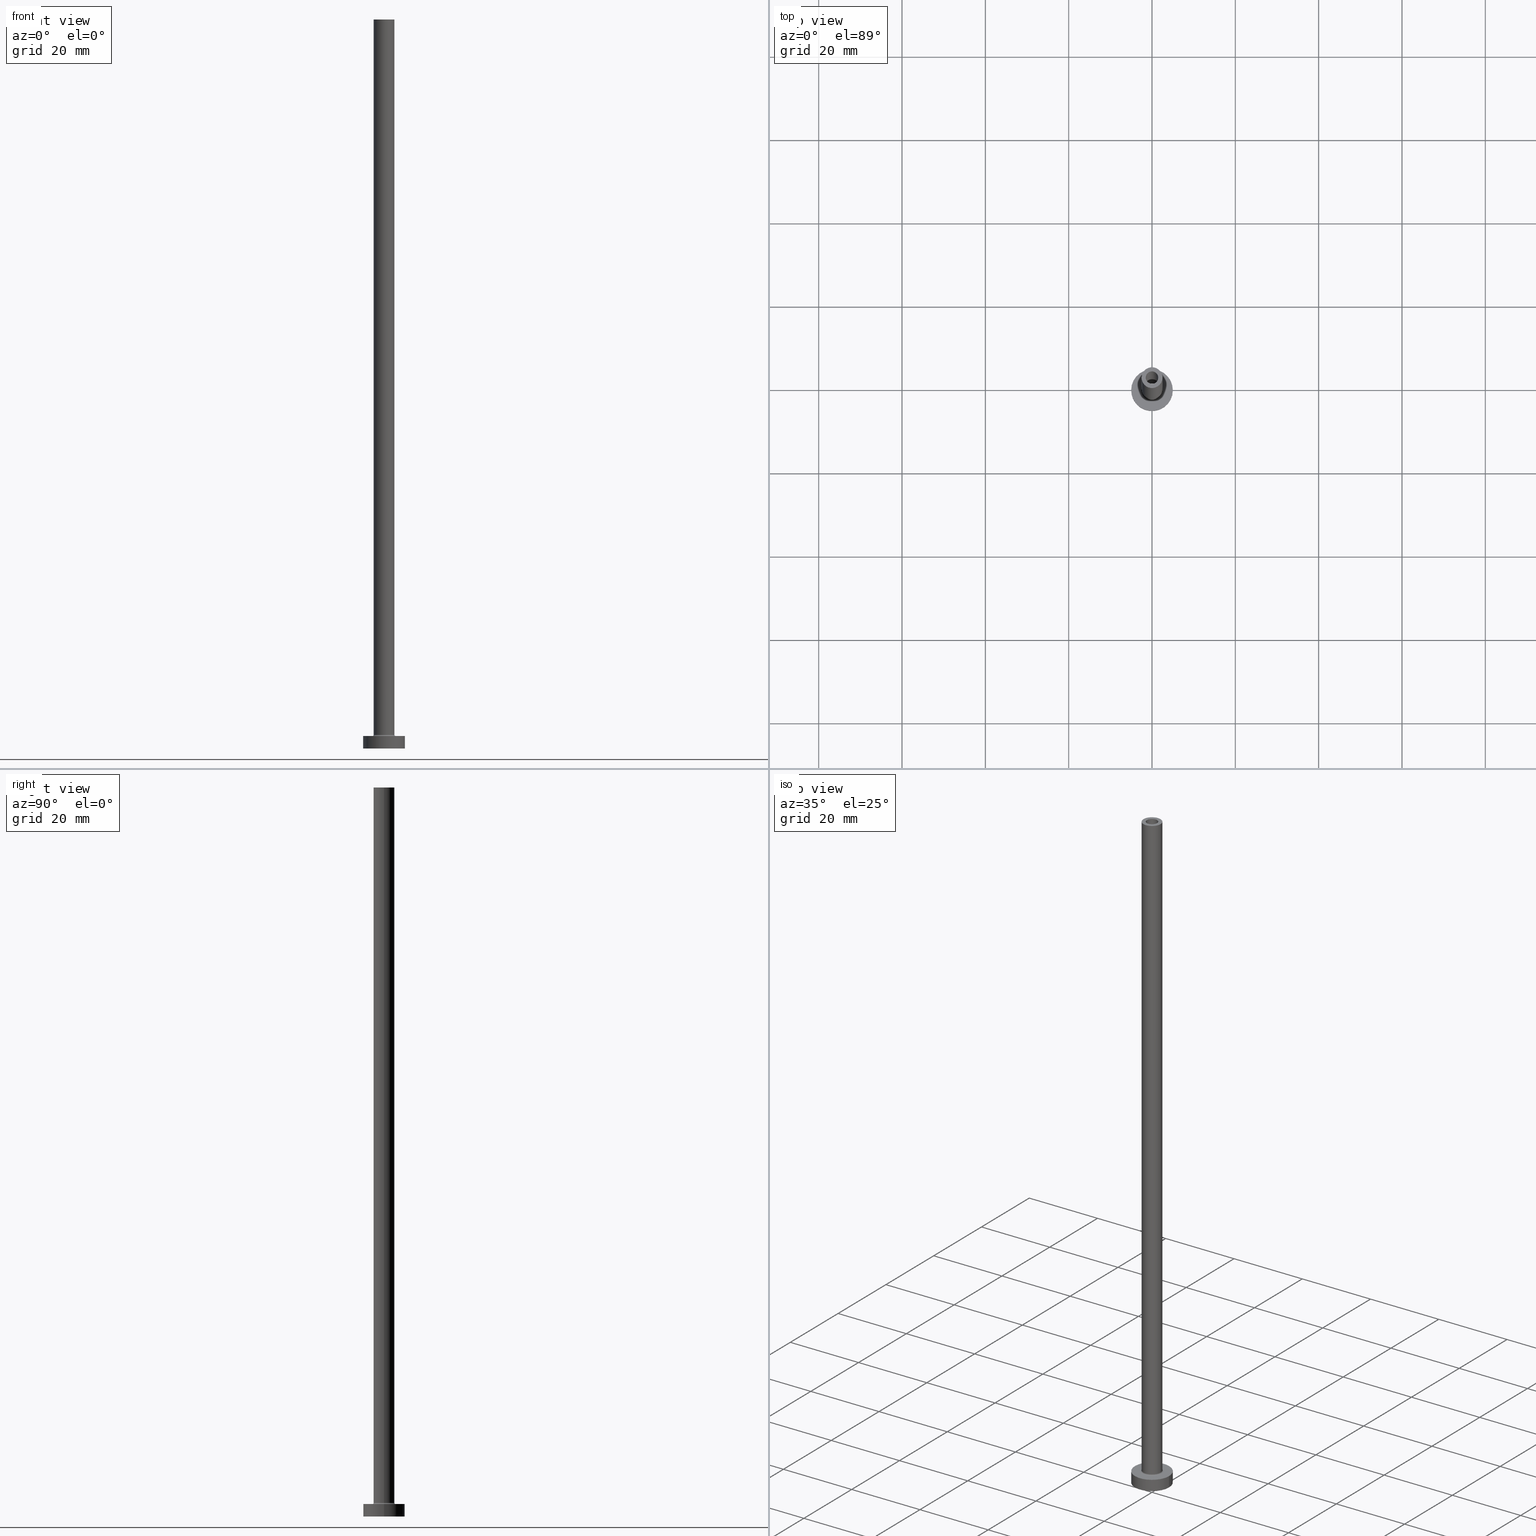
[diagram: canonical four-view strip — front | top / right | iso, engineering-drawing reading convention]
A machine part, canonical four-view strip (front | top / right | iso — engineering-drawing reading convention). The complete STEP part file that produces these views, byte-faithful:
ISO-10303-21;
HEADER;
FILE_DESCRIPTION (( 'STEP AP203' ),
    '1' );
FILE_NAME ('c6d4.STEP',
    '2023-02-13T12:04:06',
    ( '' ),
    ( '' ),
    'SwSTEP 2.0',
    'SolidWorks 2019',
    '' );
FILE_SCHEMA (( 'CONFIG_CONTROL_DESIGN' ));
ENDSEC;

DATA;
#1 = CALENDAR_DATE ( 2023, 13, 2 ) ;
#2 = AXIS2_PLACEMENT_3D ( 'NONE', #86, #3, #324 ) ;
#3 = DIRECTION ( 'NONE',  ( 0.000000000000000000, 0.000000000000000000, 1.000000000000000000 ) ) ;
#4 = ORIENTED_EDGE ( 'NONE', *, *, #7, .T. ) ;
#5 = CARTESIAN_POINT ( 'NONE',  ( 0.000000000000000000, 0.000000000000000000, 134.6669047558312116 ) ) ;
#6 = DATE_TIME_ROLE ( 'classification_date' ) ;
#7 = EDGE_CURVE ( 'NONE', #239, #161, #316, .T. ) ;
#8 = PERSON_AND_ORGANIZATION ( #430, #176 ) ;
#9 = VERTEX_POINT ( 'NONE', #281 ) ;
#10 = DIRECTION ( 'NONE',  ( -0.000000000000000000, -0.000000000000000000, -1.000000000000000000 ) ) ;
#11 = CARTESIAN_POINT ( 'NONE',  ( 0.000000000000000000, 0.000000000000000000, 0.000000000000000000 ) ) ;
#12 = ORIENTED_EDGE ( 'NONE', *, *, #159, .T. ) ;
#13 = CARTESIAN_POINT ( 'NONE',  ( 0.000000000000000000, 0.000000000000000000, 134.6669047558312116 ) ) ;
#14 = PRODUCT_DEFINITION_FORMATION_WITH_SPECIFIED_SOURCE ( 'LIBOVOLN�', '', #262, .NOT_KNOWN. ) ;
#15 = ORIENTED_EDGE ( 'NONE', *, *, #403, .T. ) ;
#16 = CARTESIAN_POINT ( 'NONE',  ( 0.000000000000000000, 0.000000000000000000, 3.000000000000000000 ) ) ;
#17 = DIRECTION ( 'NONE',  ( 1.000000000000000000, 0.000000000000000000, 0.000000000000000000 ) ) ;
#18 = EDGE_LOOP ( 'NONE', ( #328, #198 ) ) ;
#19 = DIRECTION ( 'NONE',  ( -0.000000000000000000, -0.000000000000000000, -1.000000000000000000 ) ) ;
#20 = DIRECTION ( 'NONE',  ( -0.000000000000000000, -0.000000000000000000, -1.000000000000000000 ) ) ;
#21 = CARTESIAN_POINT ( 'NONE',  ( 0.000000000000000000, 0.000000000000000000, 175.0000000000000000 ) ) ;
#22 = EDGE_CURVE ( 'NONE', #103, #435, #319, .T. ) ;
#23 = ORIENTED_EDGE ( 'NONE', *, *, #376, .T. ) ;
#24 = DIRECTION ( 'NONE',  ( 0.000000000000000000, 0.000000000000000000, -1.000000000000000000 ) ) ;
#25 = LOCAL_TIME ( 13, 4, 6.000000000000000000, #115 ) ;
#26 = EDGE_CURVE ( 'NONE', #161, #9, #79, .T. ) ;
#27 = DIRECTION ( 'NONE',  ( 1.000000000000000000, 0.000000000000000000, -0.000000000000000000 ) ) ;
#28 = AXIS2_PLACEMENT_3D ( 'NONE', #16, #51, #171 ) ;
#29 = LINE ( 'NONE', #146, #286 ) ;
#30 = EDGE_LOOP ( 'NONE', ( #422, #271, #234, #344 ) ) ;
#31 = CARTESIAN_POINT ( 'NONE',  ( -2.500000000000000000, 0.000000000000000000, 175.0000000000000000 ) ) ;
#32 = DIRECTION ( 'NONE',  ( 0.000000000000000000, 0.000000000000000000, 1.000000000000000000 ) ) ;
#33 = DIRECTION ( 'NONE',  ( 0.000000000000000000, 0.000000000000000000, 1.000000000000000000 ) ) ;
#34 = ORIENTED_EDGE ( 'NONE', *, *, #408, .T. ) ;
#35 = CARTESIAN_POINT ( 'NONE',  ( 0.000000000000000000, 0.000000000000000000, 130.0000000000000000 ) ) ;
#36 = ORIENTED_EDGE ( 'NONE', *, *, #294, .T. ) ;
#37 = APPROVAL_PERSON_ORGANIZATION ( #437, #261, #296 ) ;
#38 = APPLICATION_PROTOCOL_DEFINITION ( 'international standard', 'config_control_design', 1994, #212 ) ;
#39 = DIRECTION ( 'NONE',  ( 0.000000000000000000, 0.000000000000000000, 1.000000000000000000 ) ) ;
#40 = PERSON_AND_ORGANIZATION_ROLE ( 'classification_officer' ) ;
#41 = ORIENTED_EDGE ( 'NONE', *, *, #188, .T. ) ;
#42 = CARTESIAN_POINT ( 'NONE',  ( 0.000000000000000000, 0.000000000000000000, 0.000000000000000000 ) ) ;
#43 = CC_DESIGN_PERSON_AND_ORGANIZATION_ASSIGNMENT ( #362, #162, ( #262 ) ) ;
#44 = DIRECTION ( 'NONE',  ( 0.000000000000000000, 0.000000000000000000, 1.000000000000000000 ) ) ;
#45 = ORIENTED_EDGE ( 'NONE', *, *, #376, .F. ) ;
#46 = DATE_AND_TIME ( #1, #25 ) ;
#47 = CARTESIAN_POINT ( 'NONE',  ( 0.000000000000000000, 0.000000000000000000, 175.0000000000000000 ) ) ;
#48 = CIRCLE ( 'NONE', #135, 2.500000000000000000 ) ;
#49 = EDGE_LOOP ( 'NONE', ( #170, #12 ) ) ;
#50 = PERSON_AND_ORGANIZATION_ROLE ( 'creator' ) ;
#51 = DIRECTION ( 'NONE',  ( -0.000000000000000000, -0.000000000000000000, -1.000000000000000000 ) ) ;
#52 = PRODUCT_DEFINITION ( 'NEZN�M�', '', #14, #252 ) ;
#53 = ORIENTED_EDGE ( 'NONE', *, *, #311, .F. ) ;
#54 = CARTESIAN_POINT ( 'NONE',  ( 2.500000000000000000, 3.061616997868383141E-16, 175.0000000000000000 ) ) ;
#55 = CYLINDRICAL_SURFACE ( 'NONE', #201, 1.500000000000000222 ) ;
#56 = AXIS2_PLACEMENT_3D ( 'NONE', #5, #117, #370 ) ;
#57 = AXIS2_PLACEMENT_3D ( 'NONE', #444, #399, #206 ) ;
#58 = ORIENTED_EDGE ( 'NONE', *, *, #456, .F. ) ;
#59 = DIRECTION ( 'NONE',  ( 1.000000000000000000, 0.000000000000000000, 0.000000000000000000 ) ) ;
#60 = CIRCLE ( 'NONE', #224, 1.650000000000000133 ) ;
#61 = FACE_OUTER_BOUND ( 'NONE', #300, .T. ) ;
#62 = LOCAL_TIME ( 13, 4, 6.000000000000000000, #278 ) ;
#63 = CARTESIAN_POINT ( 'NONE',  ( 0.000000000000000000, 0.000000000000000000, 3.000000000000000000 ) ) ;
#64 = DIRECTION ( 'NONE',  ( 1.000000000000000000, 0.000000000000000000, 0.000000000000000000 ) ) ;
#65 = LOCAL_TIME ( 13, 4, 6.000000000000000000, #398 ) ;
#66 = EDGE_LOOP ( 'NONE', ( #312, #123 ) ) ;
#67 = VECTOR ( 'NONE', #155, 1000.000000000000000 ) ;
#68 = DIRECTION ( 'NONE',  ( 1.000000000000000000, 0.000000000000000000, 0.000000000000000000 ) ) ;
#69 = AXIS2_PLACEMENT_3D ( 'NONE', #175, #453, #138 ) ;
#70 = DIRECTION ( 'NONE',  ( 1.000000000000000000, 0.000000000000000000, 0.000000000000000000 ) ) ;
#71 = EDGE_CURVE ( 'NONE', #132, #336, #240, .T. ) ;
#72 = PERSON_AND_ORGANIZATION ( #430, #176 ) ;
#73 = FACE_OUTER_BOUND ( 'NONE', #245, .T. ) ;
#74 = AXIS2_PLACEMENT_3D ( 'NONE', #260, #297, #68 ) ;
#75 = ORIENTED_EDGE ( 'NONE', *, *, #395, .T. ) ;
#76 = CALENDAR_DATE ( 2023, 13, 2 ) ;
#77 = APPROVAL_DATE_TIME ( #302, #432 ) ;
#78 = CARTESIAN_POINT ( 'NONE',  ( -1.500000000000000222, 0.000000000000000000, 130.0000000000000000 ) ) ;
#79 = CIRCLE ( 'NONE', #69, 0.2999999999999999334 ) ;
#80 = EDGE_CURVE ( 'NONE', #103, #351, #60, .T. ) ;
#81 = FACE_OUTER_BOUND ( 'NONE', #49, .T. ) ;
#82 = ORIENTED_EDGE ( 'NONE', *, *, #182, .T. ) ;
#83 = AXIS2_PLACEMENT_3D ( 'NONE', #280, #407, #166 ) ;
#84 = FACE_OUTER_BOUND ( 'NONE', #448, .T. ) ;
#85 = DIRECTION ( 'NONE',  ( -1.000000000000000000, 1.224646799147353207E-16, 0.000000000000000000 ) ) ;
#86 = CARTESIAN_POINT ( 'NONE',  ( 0.000000000000000000, 0.000000000000000000, 3.000000000000000000 ) ) ;
#87 = VERTEX_POINT ( 'NONE', #105 ) ;
#88 = CALENDAR_DATE ( 2023, 13, 2 ) ;
#89 = DIRECTION ( 'NONE',  ( 0.000000000000000000, 0.000000000000000000, -1.000000000000000000 ) ) ;
#90 = ADVANCED_FACE ( 'NONE', ( #354, #187 ), #420, .F. ) ;
#91 = ORIENTED_EDGE ( 'NONE', *, *, #98, .T. ) ;
#92 = CARTESIAN_POINT ( 'NONE',  ( 0.000000000000000000, 0.000000000000000000, 175.0000000000000000 ) ) ;
#93 = CARTESIAN_POINT ( 'NONE',  ( -5.000000000000000000, 0.000000000000000000, 0.000000000000000000 ) ) ;
#94 = ORIENTED_EDGE ( 'NONE', *, *, #273, .F. ) ;
#95 = CARTESIAN_POINT ( 'NONE',  ( -2.799999999999999822, 3.429011037612588783E-16, 3.299999999999997158 ) ) ;
#96 = TOROIDAL_SURFACE ( 'NONE', #195, 2.799999999999999822, 0.2999999999999999889 ) ;
#97 = DIRECTION ( 'NONE',  ( -0.000000000000000000, -0.000000000000000000, -1.000000000000000000 ) ) ;
#98 = EDGE_CURVE ( 'NONE', #275, #378, #436, .T. ) ;
#99 = ADVANCED_BREP_SHAPE_REPRESENTATION ( 'c6d4', ( #181, #387 ), #118 ) ;
#100 = DIRECTION ( 'NONE',  ( 0.000000000000000000, 0.000000000000000000, -1.000000000000000000 ) ) ;
#101 = CARTESIAN_POINT ( 'NONE',  ( -5.000000000000000000, 0.000000000000000000, 3.000000000000000000 ) ) ;
#102 = ORIENTED_EDGE ( 'NONE', *, *, #26, .F. ) ;
#103 = VERTEX_POINT ( 'NONE', #235 ) ;
#104 = DIRECTION ( 'NONE',  ( 1.000000000000000000, 0.000000000000000000, -0.000000000000000000 ) ) ;
#105 = CARTESIAN_POINT ( 'NONE',  ( -2.500000000000000000, 0.000000000000000000, 175.0000000000000000 ) ) ;
#106 = DIRECTION ( 'NONE',  ( 0.000000000000000000, 0.000000000000000000, -1.000000000000000000 ) ) ;
#107 = ORIENTED_EDGE ( 'NONE', *, *, #456, .T. ) ;
#108 = DIRECTION ( 'NONE',  ( -1.000000000000000000, 0.000000000000000000, 0.000000000000000000 ) ) ;
#109 = AXIS2_PLACEMENT_3D ( 'NONE', #356, #421, #258 ) ;
#110 = ADVANCED_FACE ( 'NONE', ( #144 ), #96, .F. ) ;
#111 = DIRECTION ( 'NONE',  ( -0.000000000000000000, -0.000000000000000000, -1.000000000000000000 ) ) ;
#112 = TOROIDAL_SURFACE ( 'NONE', #375, 2.799999999999999822, 0.2999999999999999889 ) ;
#113 = DATE_AND_TIME ( #156, #426 ) ;
#114 = ORIENTED_EDGE ( 'NONE', *, *, #148, .T. ) ;
#115 = COORDINATED_UNIVERSAL_TIME_OFFSET ( 1, 0, .AHEAD. ) ;
#116 = ORIENTED_EDGE ( 'NONE', *, *, #254, .F. ) ;
#117 = DIRECTION ( 'NONE',  ( 0.000000000000000000, 0.000000000000000000, -1.000000000000000000 ) ) ;
#118 =( GEOMETRIC_REPRESENTATION_CONTEXT ( 3 ) GLOBAL_UNCERTAINTY_ASSIGNED_CONTEXT ( ( #414 ) ) GLOBAL_UNIT_ASSIGNED_CONTEXT ( ( #337, #459, #153 ) ) REPRESENTATION_CONTEXT ( 'NONE', 'WORKASPACE' ) );
#119 = APPROVAL_DATE_TIME ( #270, #261 ) ;
#120 = CYLINDRICAL_SURFACE ( 'NONE', #213, 5.000000000000000000 ) ;
#121 = FACE_BOUND ( 'NONE', #18, .T. ) ;
#122 = CIRCLE ( 'NONE', #359, 2.500000000000000000 ) ;
#123 = ORIENTED_EDGE ( 'NONE', *, *, #80, .F. ) ;
#124 = FACE_OUTER_BOUND ( 'NONE', #189, .T. ) ;
#125 = EDGE_LOOP ( 'NONE', ( #417, #404 ) ) ;
#126 = CYLINDRICAL_SURFACE ( 'NONE', #216, 1.650000000000000133 ) ;
#127 = AXIS2_PLACEMENT_3D ( 'NONE', #92, #379, #59 ) ;
#128 = VERTEX_POINT ( 'NONE', #78 ) ;
#129 = APPROVAL_ROLE ( '' ) ;
#130 = DIRECTION ( 'NONE',  ( 1.000000000000000000, 0.000000000000000000, 0.000000000000000000 ) ) ;
#131 = ADVANCED_FACE ( 'NONE', ( #124 ), #120, .T. ) ;
#132 = VERTEX_POINT ( 'NONE', #274 ) ;
#133 = DIRECTION ( 'NONE',  ( 1.000000000000000000, 0.000000000000000000, 0.000000000000000000 ) ) ;
#134 = CARTESIAN_POINT ( 'NONE',  ( 0.000000000000000000, 0.000000000000000000, 0.000000000000000000 ) ) ;
#135 = AXIS2_PLACEMENT_3D ( 'NONE', #390, #223, #364 ) ;
#136 = CIRCLE ( 'NONE', #74, 5.000000000000000000 ) ;
#137 = ADVANCED_FACE ( 'NONE', ( #303 ), #112, .F. ) ;
#138 = DIRECTION ( 'NONE',  ( 0.000000000000000000, 0.000000000000000000, -1.000000000000000000 ) ) ;
#139 = DIRECTION ( 'NONE',  ( 0.000000000000000000, 0.000000000000000000, 1.000000000000000000 ) ) ;
#140 = EDGE_LOOP ( 'NONE', ( #269, #4, #393, #45 ) ) ;
#141 = VECTOR ( 'NONE', #339, 1000.000000000000000 ) ;
#142 = CARTESIAN_POINT ( 'NONE',  ( 1.650000000000000133, 2.020667218593133001E-16, 0.000000000000000000 ) ) ;
#143 = EDGE_CURVE ( 'NONE', #378, #275, #293, .T. ) ;
#144 = FACE_OUTER_BOUND ( 'NONE', #222, .T. ) ;
#145 = DIRECTION ( 'NONE',  ( 1.000000000000000000, 0.000000000000000000, 0.000000000000000000 ) ) ;
#146 = CARTESIAN_POINT ( 'NONE',  ( 1.500000000000000222, 1.836970198721029934E-16, 175.0000000000000000 ) ) ;
#147 = CIRCLE ( 'NONE', #150, 5.000000000000000000 ) ;
#148 = EDGE_CURVE ( 'NONE', #351, #289, #418, .T. ) ;
#149 = CIRCLE ( 'NONE', #127, 2.500000000000000000 ) ;
#150 = AXIS2_PLACEMENT_3D ( 'NONE', #411, #244, #17 ) ;
#151 = ORIENTED_EDGE ( 'NONE', *, *, #210, .F. ) ;
#152 = ORIENTED_EDGE ( 'NONE', *, *, #210, .T. ) ;
#153 =( NAMED_UNIT ( * ) SI_UNIT ( $, .STERADIAN. ) SOLID_ANGLE_UNIT ( ) );
#154 = APPROVAL_STATUS ( 'not_yet_approved' ) ;
#155 = DIRECTION ( 'NONE',  ( 0.000000000000000000, 0.000000000000000000, -1.000000000000000000 ) ) ;
#156 = CALENDAR_DATE ( 2023, 13, 2 ) ;
#157 = CARTESIAN_POINT ( 'NONE',  ( 2.500000000000000000, 3.061616997868383141E-16, 3.299999999999997158 ) ) ;
#158 = AXIS2_PLACEMENT_3D ( 'NONE', #47, #353, #104 ) ;
#159 = EDGE_CURVE ( 'NONE', #239, #87, #122, .T. ) ;
#160 = PERSON_AND_ORGANIZATION ( #430, #176 ) ;
#161 = VERTEX_POINT ( 'NONE', #157 ) ;
#162 = PERSON_AND_ORGANIZATION_ROLE ( 'design_owner' ) ;
#163 = CC_DESIGN_PERSON_AND_ORGANIZATION_ASSIGNMENT ( #8, #227, ( #14 ) ) ;
#164 = PERSON_AND_ORGANIZATION ( #430, #176 ) ;
#165 = VERTEX_POINT ( 'NONE', #298 ) ;
#166 = DIRECTION ( 'NONE',  ( 1.000000000000000000, 0.000000000000000000, 0.000000000000000000 ) ) ;
#167 = EDGE_LOOP ( 'NONE', ( #406, #442, #34, #355 ) ) ;
#168 = ADVANCED_FACE ( 'NONE', ( #287, #81 ), #386, .T. ) ;
#169 = CARTESIAN_POINT ( 'NONE',  ( -2.500000000000000000, 0.000000000000000000, 3.299999999999997158 ) ) ;
#170 = ORIENTED_EDGE ( 'NONE', *, *, #332, .T. ) ;
#171 = DIRECTION ( 'NONE',  ( 1.000000000000000000, 0.000000000000000000, 0.000000000000000000 ) ) ;
#172 = EDGE_CURVE ( 'NONE', #161, #209, #314, .T. ) ;
#173 = CARTESIAN_POINT ( 'NONE',  ( 5.000000000000000000, 6.123233995736766282E-16, 3.000000000000000000 ) ) ;
#174 = EDGE_CURVE ( 'NONE', #378, #165, #29, .T. ) ;
#175 = CARTESIAN_POINT ( 'NONE',  ( 2.799999999999999822, 0.000000000000000000, 3.299999999999997158 ) ) ;
#176 = ORGANIZATION ( 'NEUR�EN�', 'NEUR�EN�', '' ) ;
#177 = VECTOR ( 'NONE', #10, 1000.000000000000000 ) ;
#178 = CC_DESIGN_PERSON_AND_ORGANIZATION_ASSIGNMENT ( #164, #40, ( #190 ) ) ;
#179 = DIRECTION ( 'NONE',  ( 1.000000000000000000, 0.000000000000000000, 0.000000000000000000 ) ) ;
#180 = CC_DESIGN_DATE_AND_TIME_ASSIGNMENT ( #392, #191, ( #52 ) ) ;
#181 = MANIFOLD_SOLID_BREP ( 'Odebrat vysunut�m4', #429 ) ;
#182 = EDGE_CURVE ( 'NONE', #338, #397, #136, .T. ) ;
#183 = DIRECTION ( 'NONE',  ( 0.000000000000000000, 0.000000000000000000, 1.000000000000000000 ) ) ;
#184 = DIRECTION ( 'NONE',  ( 1.000000000000000000, 0.000000000000000000, 0.000000000000000000 ) ) ;
#185 = ORIENTED_EDGE ( 'NONE', *, *, #416, .F. ) ;
#186 = CIRCLE ( 'NONE', #255, 1.650000000000000133 ) ;
#187 = FACE_OUTER_BOUND ( 'NONE', #236, .T. ) ;
#188 = EDGE_CURVE ( 'NONE', #338, #132, #267, .T. ) ;
#189 = EDGE_LOOP ( 'NONE', ( #340, #369, #334, #228 ) ) ;
#190 = SECURITY_CLASSIFICATION ( '', '', #295 ) ;
#191 = DATE_TIME_ROLE ( 'creation_date' ) ;
#192 = EDGE_LOOP ( 'NONE', ( #151, #241 ) ) ;
#193 = PERSON_AND_ORGANIZATION ( #430, #176 ) ;
#194 = APPLICATION_CONTEXT ( 'configuration controlled 3d designs of mechanical parts and assemblies' ) ;
#195 = AXIS2_PLACEMENT_3D ( 'NONE', #320, #365, #330 ) ;
#196 = ORIENTED_EDGE ( 'NONE', *, *, #311, .T. ) ;
#197 = DIRECTION ( 'NONE',  ( 0.000000000000000000, 0.000000000000000000, 1.000000000000000000 ) ) ;
#198 = ORIENTED_EDGE ( 'NONE', *, *, #273, .T. ) ;
#199 = CARTESIAN_POINT ( 'NONE',  ( 0.000000000000000000, 0.000000000000000000, 175.0000000000000000 ) ) ;
#200 = AXIS2_PLACEMENT_3D ( 'NONE', #207, #24, #454 ) ;
#201 = AXIS2_PLACEMENT_3D ( 'NONE', #21, #89, #440 ) ;
#202 = EDGE_LOOP ( 'NONE', ( #439, #243, #23, #107 ) ) ;
#203 = LINE ( 'NONE', #345, #383 ) ;
#204 = ORIENTED_EDGE ( 'NONE', *, *, #71, .T. ) ;
#205 = AXIS2_PLACEMENT_3D ( 'NONE', #42, #33, #184 ) ;
#206 = DIRECTION ( 'NONE',  ( 1.000000000000000000, 0.000000000000000000, 0.000000000000000000 ) ) ;
#207 = CARTESIAN_POINT ( 'NONE',  ( 0.000000000000000000, 0.000000000000000000, 175.0000000000000000 ) ) ;
#208 = CIRCLE ( 'NONE', #358, 0.2999999999999999334 ) ;
#209 = VERTEX_POINT ( 'NONE', #169 ) ;
#210 = EDGE_CURVE ( 'NONE', #289, #435, #410, .T. ) ;
#211 = AXIS2_PLACEMENT_3D ( 'NONE', #455, #44, #331 ) ;
#212 = APPLICATION_CONTEXT ( 'configuration controlled 3d designs of mechanical parts and assemblies' ) ;
#213 = AXIS2_PLACEMENT_3D ( 'NONE', #221, #232, #321 ) ;
#214 = ADVANCED_FACE ( 'NONE', ( #84 ), #346, .T. ) ;
#215 = CARTESIAN_POINT ( 'NONE',  ( 0.000000000000000000, 0.000000000000000000, 3.299999999999997158 ) ) ;
#216 = AXIS2_PLACEMENT_3D ( 'NONE', #13, #372, #374 ) ;
#217 = ORIENTED_EDGE ( 'NONE', *, *, #172, .F. ) ;
#218 = CARTESIAN_POINT ( 'NONE',  ( 0.000000000000000000, 0.000000000000000000, 175.0000000000000000 ) ) ;
#219 = ADVANCED_FACE ( 'NONE', ( #237 ), #55, .F. ) ;
#220 = LINE ( 'NONE', #31, #391 ) ;
#221 = CARTESIAN_POINT ( 'NONE',  ( 0.000000000000000000, 0.000000000000000000, 3.000000000000000000 ) ) ;
#222 = EDGE_LOOP ( 'NONE', ( #446, #217, #307, #94 ) ) ;
#223 = DIRECTION ( 'NONE',  ( 0.000000000000000000, 0.000000000000000000, 1.000000000000000000 ) ) ;
#224 = AXIS2_PLACEMENT_3D ( 'NONE', #326, #39, #145 ) ;
#225 = PRODUCT_DEFINITION_SHAPE ( 'NONE', 'NONE',  #52 ) ;
#226 = MECHANICAL_CONTEXT ( 'NONE', #212, 'mechanical' ) ;
#227 = PERSON_AND_ORGANIZATION_ROLE ( 'design_supplier' ) ;
#228 = ORIENTED_EDGE ( 'NONE', *, *, #246, .T. ) ;
#229 = ADVANCED_FACE ( 'NONE', ( #313 ), #126, .F. ) ;
#230 = CYLINDRICAL_SURFACE ( 'NONE', #56, 1.650000000000000133 ) ;
#231 = CALENDAR_DATE ( 2023, 13, 2 ) ;
#232 = DIRECTION ( 'NONE',  ( -0.000000000000000000, -0.000000000000000000, -1.000000000000000000 ) ) ;
#233 = VECTOR ( 'NONE', #100, 1000.000000000000000 ) ;
#234 = ORIENTED_EDGE ( 'NONE', *, *, #342, .T. ) ;
#235 = CARTESIAN_POINT ( 'NONE',  ( 1.650000000000000133, 2.020667218593133001E-16, 130.0000000000000000 ) ) ;
#236 = EDGE_LOOP ( 'NONE', ( #304, #357 ) ) ;
#237 = FACE_OUTER_BOUND ( 'NONE', #30, .T. ) ;
#238 = PLANE ( 'NONE',  #2 ) ;
#239 = VERTEX_POINT ( 'NONE', #54 ) ;
#240 = CIRCLE ( 'NONE', #205, 5.000000000000000000 ) ;
#241 = ORIENTED_EDGE ( 'NONE', *, *, #408, .F. ) ;
#242 = CYLINDRICAL_SURFACE ( 'NONE', #265, 2.500000000000000000 ) ;
#243 = ORIENTED_EDGE ( 'NONE', *, *, #332, .F. ) ;
#244 = DIRECTION ( 'NONE',  ( 0.000000000000000000, 0.000000000000000000, 1.000000000000000000 ) ) ;
#245 = EDGE_LOOP ( 'NONE', ( #253, #389, #114, #152 ) ) ;
#246 = EDGE_CURVE ( 'NONE', #336, #132, #283, .T. ) ;
#247 = CARTESIAN_POINT ( 'NONE',  ( 0.000000000000000000, 0.000000000000000000, 130.0000000000000000 ) ) ;
#248 = AXIS2_PLACEMENT_3D ( 'NONE', #288, #335, #64 ) ;
#249 = DIRECTION ( 'NONE',  ( 1.224646799147353207E-16, 1.000000000000000000, -0.000000000000000000 ) ) ;
#250 = DIRECTION ( 'NONE',  ( 0.000000000000000000, 0.000000000000000000, 1.000000000000000000 ) ) ;
#251 = CC_DESIGN_PERSON_AND_ORGANIZATION_ASSIGNMENT ( #72, #299, ( #14 ) ) ;
#252 = DESIGN_CONTEXT ( 'detailed design', #194, 'design' ) ;
#253 = ORIENTED_EDGE ( 'NONE', *, *, #22, .F. ) ;
#254 = EDGE_CURVE ( 'NONE', #397, #336, #309, .T. ) ;
#255 = AXIS2_PLACEMENT_3D ( 'NONE', #284, #250, #317 ) ;
#256 = CARTESIAN_POINT ( 'NONE',  ( 1.650000000000000133, 2.020667218593133001E-16, 134.6669047558312116 ) ) ;
#257 = ORIENTED_EDGE ( 'NONE', *, *, #182, .F. ) ;
#258 = DIRECTION ( 'NONE',  ( 1.000000000000000000, 0.000000000000000000, 0.000000000000000000 ) ) ;
#259 = ADVANCED_FACE ( 'NONE', ( #279 ), #242, .T. ) ;
#260 = CARTESIAN_POINT ( 'NONE',  ( 0.000000000000000000, 0.000000000000000000, 3.000000000000000000 ) ) ;
#261 = APPROVAL ( #154, 'NEUR�EN�' ) ;
#262 = PRODUCT ( 'c6d4', 'c6d4', '', ( #226 ) ) ;
#263 = CARTESIAN_POINT ( 'NONE',  ( 1.500000000000000222, 1.836970198721029934E-16, 175.0000000000000000 ) ) ;
#264 = CIRCLE ( 'NONE', #315, 1.650000000000000133 ) ;
#265 = AXIS2_PLACEMENT_3D ( 'NONE', #199, #19, #343 ) ;
#266 = COORDINATED_UNIVERSAL_TIME_OFFSET ( 1, 0, .AHEAD. ) ;
#267 = LINE ( 'NONE', #402, #141 ) ;
#268 = FACE_OUTER_BOUND ( 'NONE', #277, .T. ) ;
#269 = ORIENTED_EDGE ( 'NONE', *, *, #159, .F. ) ;
#270 = DATE_AND_TIME ( #76, #65 ) ;
#271 = ORIENTED_EDGE ( 'NONE', *, *, #143, .T. ) ;
#272 = DIRECTION ( 'NONE',  ( 1.000000000000000000, 0.000000000000000000, 0.000000000000000000 ) ) ;
#273 = EDGE_CURVE ( 'NONE', #377, #9, #433, .T. ) ;
#274 = CARTESIAN_POINT ( 'NONE',  ( 5.000000000000000000, 6.123233995736766282E-16, 0.000000000000000000 ) ) ;
#275 = VERTEX_POINT ( 'NONE', #409 ) ;
#276 = AXIS2_PLACEMENT_3D ( 'NONE', #247, #282, #133 ) ;
#277 = EDGE_LOOP ( 'NONE', ( #15, #82 ) ) ;
#278 = COORDINATED_UNIVERSAL_TIME_OFFSET ( 1, 0, .AHEAD. ) ;
#279 = FACE_OUTER_BOUND ( 'NONE', #202, .T. ) ;
#280 = CARTESIAN_POINT ( 'NONE',  ( 0.000000000000000000, 0.000000000000000000, 130.0000000000000000 ) ) ;
#281 = CARTESIAN_POINT ( 'NONE',  ( 2.799999999999999822, 0.000000000000000000, 2.999999999999998668 ) ) ;
#282 = DIRECTION ( 'NONE',  ( 0.000000000000000000, 0.000000000000000000, 1.000000000000000000 ) ) ;
#283 = CIRCLE ( 'NONE', #457, 5.000000000000000000 ) ;
#284 = CARTESIAN_POINT ( 'NONE',  ( 0.000000000000000000, 0.000000000000000000, 130.0000000000000000 ) ) ;
#285 = CC_DESIGN_APPROVAL ( #323, ( #14 ) ) ;
#286 = VECTOR ( 'NONE', #106, 1000.000000000000000 ) ;
#287 = FACE_BOUND ( 'NONE', #125, .T. ) ;
#288 = CARTESIAN_POINT ( 'NONE',  ( 0.000000000000000000, 0.000000000000000000, 175.0000000000000000 ) ) ;
#289 = VERTEX_POINT ( 'NONE', #447 ) ;
#290 = FACE_OUTER_BOUND ( 'NONE', #140, .T. ) ;
#291 = APPROVAL_PERSON_ORGANIZATION ( #160, #323, #292 ) ;
#292 = APPROVAL_ROLE ( '' ) ;
#293 = CIRCLE ( 'NONE', #211, 1.500000000000000222 ) ;
#294 = EDGE_CURVE ( 'NONE', #165, #128, #368, .T. ) ;
#295 = SECURITY_CLASSIFICATION_LEVEL ( 'unclassified' ) ;
#296 = APPROVAL_ROLE ( '' ) ;
#297 = DIRECTION ( 'NONE',  ( 0.000000000000000000, 0.000000000000000000, 1.000000000000000000 ) ) ;
#298 = CARTESIAN_POINT ( 'NONE',  ( 1.500000000000000222, 1.836970198721029934E-16, 130.0000000000000000 ) ) ;
#299 = PERSON_AND_ORGANIZATION_ROLE ( 'creator' ) ;
#300 = EDGE_LOOP ( 'NONE', ( #91, #363, #53, #412 ) ) ;
#301 = APPLICATION_PROTOCOL_DEFINITION ( 'international standard', 'config_control_design', 1994, #194 ) ;
#302 = DATE_AND_TIME ( #88, #62 ) ;
#303 = FACE_OUTER_BOUND ( 'NONE', #394, .T. ) ;
#304 = ORIENTED_EDGE ( 'NONE', *, *, #246, .F. ) ;
#305 = CC_DESIGN_DATE_AND_TIME_ASSIGNMENT ( #46, #6, ( #190 ) ) ;
#306 = DIRECTION ( 'NONE',  ( 0.000000000000000000, 0.000000000000000000, 1.000000000000000000 ) ) ;
#307 = ORIENTED_EDGE ( 'NONE', *, *, #26, .T. ) ;
#308 = CC_DESIGN_SECURITY_CLASSIFICATION ( #190, ( #14 ) ) ;
#309 = LINE ( 'NONE', #310, #177 ) ;
#310 = CARTESIAN_POINT ( 'NONE',  ( -5.000000000000000000, 0.000000000000000000, 3.000000000000000000 ) ) ;
#311 = EDGE_CURVE ( 'NONE', #128, #165, #425, .T. ) ;
#312 = ORIENTED_EDGE ( 'NONE', *, *, #347, .F. ) ;
#313 = FACE_OUTER_BOUND ( 'NONE', #167, .T. ) ;
#314 = CIRCLE ( 'NONE', #109, 2.500000000000000000 ) ;
#315 = AXIS2_PLACEMENT_3D ( 'NONE', #452, #97, #382 ) ;
#316 = LINE ( 'NONE', #415, #419 ) ;
#317 = DIRECTION ( 'NONE',  ( 1.000000000000000000, 0.000000000000000000, 0.000000000000000000 ) ) ;
#318 = DIRECTION ( 'NONE',  ( -0.000000000000000000, -0.000000000000000000, -1.000000000000000000 ) ) ;
#319 = LINE ( 'NONE', #256, #233 ) ;
#320 = CARTESIAN_POINT ( 'NONE',  ( 0.000000000000000000, 0.000000000000000000, 3.299999999999997158 ) ) ;
#321 = DIRECTION ( 'NONE',  ( -1.000000000000000000, 0.000000000000000000, 0.000000000000000000 ) ) ;
#322 = FACE_BOUND ( 'NONE', #350, .T. ) ;
#323 = APPROVAL ( #361, 'NEUR�EN�' ) ;
#324 = DIRECTION ( 'NONE',  ( 1.000000000000000000, 0.000000000000000000, -0.000000000000000000 ) ) ;
#325 = CIRCLE ( 'NONE', #441, 2.799999999999999822 ) ;
#326 = CARTESIAN_POINT ( 'NONE',  ( 0.000000000000000000, 0.000000000000000000, 130.0000000000000000 ) ) ;
#327 = AXIS2_PLACEMENT_3D ( 'NONE', #449, #451, #405 ) ;
#328 = ORIENTED_EDGE ( 'NONE', *, *, #416, .T. ) ;
#329 = AXIS2_PLACEMENT_3D ( 'NONE', #349, #139, #27 ) ;
#330 = DIRECTION ( 'NONE',  ( 1.000000000000000000, 0.000000000000000000, 0.000000000000000000 ) ) ;
#331 = DIRECTION ( 'NONE',  ( 1.000000000000000000, 0.000000000000000000, 0.000000000000000000 ) ) ;
#332 = EDGE_CURVE ( 'NONE', #87, #239, #149, .T. ) ;
#333 = AXIS2_PLACEMENT_3D ( 'NONE', #218, #423, #108 ) ;
#334 = ORIENTED_EDGE ( 'NONE', *, *, #254, .T. ) ;
#335 = DIRECTION ( 'NONE',  ( 0.000000000000000000, 0.000000000000000000, 1.000000000000000000 ) ) ;
#336 = VERTEX_POINT ( 'NONE', #93 ) ;
#337 =( LENGTH_UNIT ( ) NAMED_UNIT ( * ) SI_UNIT ( .MILLI., .METRE. ) );
#338 = VERTEX_POINT ( 'NONE', #173 ) ;
#339 = DIRECTION ( 'NONE',  ( -0.000000000000000000, -0.000000000000000000, -1.000000000000000000 ) ) ;
#340 = ORIENTED_EDGE ( 'NONE', *, *, #188, .F. ) ;
#341 = CC_DESIGN_APPROVAL ( #432, ( #190 ) ) ;
#342 = EDGE_CURVE ( 'NONE', #275, #128, #203, .T. ) ;
#343 = DIRECTION ( 'NONE',  ( -1.000000000000000000, 0.000000000000000000, 0.000000000000000000 ) ) ;
#344 = ORIENTED_EDGE ( 'NONE', *, *, #294, .F. ) ;
#345 = CARTESIAN_POINT ( 'NONE',  ( -1.500000000000000222, 0.000000000000000000, 175.0000000000000000 ) ) ;
#346 = CYLINDRICAL_SURFACE ( 'NONE', #327, 5.000000000000000000 ) ;
#347 = EDGE_CURVE ( 'NONE', #351, #103, #186, .T. ) ;
#348 = CARTESIAN_POINT ( 'NONE',  ( -1.650000000000000133, 0.000000000000000000, 130.0000000000000000 ) ) ;
#349 = CARTESIAN_POINT ( 'NONE',  ( 0.000000000000000000, 0.000000000000000000, 0.000000000000000000 ) ) ;
#350 = EDGE_LOOP ( 'NONE', ( #196, #36 ) ) ;
#351 = VERTEX_POINT ( 'NONE', #348 ) ;
#352 = CARTESIAN_POINT ( 'NONE',  ( -2.799999999999999822, 3.429011037612589276E-16, 2.999999999999998668 ) ) ;
#353 = DIRECTION ( 'NONE',  ( 0.000000000000000000, 0.000000000000000000, 1.000000000000000000 ) ) ;
#354 = FACE_BOUND ( 'NONE', #192, .T. ) ;
#355 = ORIENTED_EDGE ( 'NONE', *, *, #148, .F. ) ;
#356 = CARTESIAN_POINT ( 'NONE',  ( 0.000000000000000000, 0.000000000000000000, 3.299999999999997158 ) ) ;
#357 = ORIENTED_EDGE ( 'NONE', *, *, #71, .F. ) ;
#358 = AXIS2_PLACEMENT_3D ( 'NONE', #95, #249, #85 ) ;
#359 = AXIS2_PLACEMENT_3D ( 'NONE', #396, #388, #434 ) ;
#360 = DIRECTION ( 'NONE',  ( 1.000000000000000000, 0.000000000000000000, -0.000000000000000000 ) ) ;
#361 = APPROVAL_STATUS ( 'not_yet_approved' ) ;
#362 = PERSON_AND_ORGANIZATION ( #430, #176 ) ;
#363 = ORIENTED_EDGE ( 'NONE', *, *, #174, .T. ) ;
#364 = DIRECTION ( 'NONE',  ( 1.000000000000000000, 0.000000000000000000, 0.000000000000000000 ) ) ;
#365 = DIRECTION ( 'NONE',  ( 0.000000000000000000, 0.000000000000000000, 1.000000000000000000 ) ) ;
#366 = ADVANCED_FACE ( 'NONE', ( #61 ), #381, .F. ) ;
#367 = CC_DESIGN_APPROVAL ( #261, ( #52 ) ) ;
#368 = CIRCLE ( 'NONE', #276, 1.500000000000000222 ) ;
#369 = ORIENTED_EDGE ( 'NONE', *, *, #403, .F. ) ;
#370 = DIRECTION ( 'NONE',  ( -1.000000000000000000, 0.000000000000000000, 0.000000000000000000 ) ) ;
#371 = LOCAL_TIME ( 13, 4, 6.000000000000000000, #266 ) ;
#372 = DIRECTION ( 'NONE',  ( 0.000000000000000000, 0.000000000000000000, -1.000000000000000000 ) ) ;
#373 = SHAPE_DEFINITION_REPRESENTATION ( #225, #99 ) ;
#374 = DIRECTION ( 'NONE',  ( -1.000000000000000000, 0.000000000000000000, 0.000000000000000000 ) ) ;
#375 = AXIS2_PLACEMENT_3D ( 'NONE', #215, #32, #179 ) ;
#376 = EDGE_CURVE ( 'NONE', #87, #209, #220, .T. ) ;
#377 = VERTEX_POINT ( 'NONE', #352 ) ;
#378 = VERTEX_POINT ( 'NONE', #263 ) ;
#379 = DIRECTION ( 'NONE',  ( 0.000000000000000000, 0.000000000000000000, 1.000000000000000000 ) ) ;
#380 = ADVANCED_FACE ( 'NONE', ( #322, #431 ), #427, .F. ) ;
#381 = CYLINDRICAL_SURFACE ( 'NONE', #200, 1.500000000000000222 ) ;
#382 = DIRECTION ( 'NONE',  ( 1.000000000000000000, 0.000000000000000000, 0.000000000000000000 ) ) ;
#383 = VECTOR ( 'NONE', #413, 1000.000000000000000 ) ;
#384 = ADVANCED_FACE ( 'NONE', ( #121, #268 ), #238, .T. ) ;
#385 = CYLINDRICAL_SURFACE ( 'NONE', #333, 2.500000000000000000 ) ;
#386 = PLANE ( 'NONE',  #158 ) ;
#387 = AXIS2_PLACEMENT_3D ( 'NONE', #11, #306, #272 ) ;
#388 = DIRECTION ( 'NONE',  ( 0.000000000000000000, 0.000000000000000000, 1.000000000000000000 ) ) ;
#389 = ORIENTED_EDGE ( 'NONE', *, *, #80, .T. ) ;
#390 = CARTESIAN_POINT ( 'NONE',  ( 0.000000000000000000, 0.000000000000000000, 3.299999999999997158 ) ) ;
#391 = VECTOR ( 'NONE', #111, 1000.000000000000000 ) ;
#392 = DATE_AND_TIME ( #231, #371 ) ;
#393 = ORIENTED_EDGE ( 'NONE', *, *, #172, .T. ) ;
#394 = EDGE_LOOP ( 'NONE', ( #58, #75, #185, #102 ) ) ;
#395 = EDGE_CURVE ( 'NONE', #209, #377, #208, .T. ) ;
#396 = CARTESIAN_POINT ( 'NONE',  ( 0.000000000000000000, 0.000000000000000000, 175.0000000000000000 ) ) ;
#397 = VERTEX_POINT ( 'NONE', #101 ) ;
#398 = COORDINATED_UNIVERSAL_TIME_OFFSET ( 1, 0, .AHEAD. ) ;
#399 = DIRECTION ( 'NONE',  ( -0.000000000000000000, -0.000000000000000000, -1.000000000000000000 ) ) ;
#400 = COORDINATED_UNIVERSAL_TIME_OFFSET ( 1, 0, .AHEAD. ) ;
#401 = AXIS2_PLACEMENT_3D ( 'NONE', #35, #183, #360 ) ;
#402 = CARTESIAN_POINT ( 'NONE',  ( 5.000000000000000000, 6.123233995736766282E-16, 3.000000000000000000 ) ) ;
#403 = EDGE_CURVE ( 'NONE', #397, #338, #147, .T. ) ;
#404 = ORIENTED_EDGE ( 'NONE', *, *, #143, .F. ) ;
#405 = DIRECTION ( 'NONE',  ( -1.000000000000000000, 0.000000000000000000, 0.000000000000000000 ) ) ;
#406 = ORIENTED_EDGE ( 'NONE', *, *, #347, .T. ) ;
#407 = DIRECTION ( 'NONE',  ( 0.000000000000000000, 0.000000000000000000, 1.000000000000000000 ) ) ;
#408 = EDGE_CURVE ( 'NONE', #435, #289, #264, .T. ) ;
#409 = CARTESIAN_POINT ( 'NONE',  ( -1.500000000000000222, 0.000000000000000000, 175.0000000000000000 ) ) ;
#410 = CIRCLE ( 'NONE', #57, 1.650000000000000133 ) ;
#411 = CARTESIAN_POINT ( 'NONE',  ( 0.000000000000000000, 0.000000000000000000, 3.000000000000000000 ) ) ;
#412 = ORIENTED_EDGE ( 'NONE', *, *, #342, .F. ) ;
#413 = DIRECTION ( 'NONE',  ( 0.000000000000000000, 0.000000000000000000, -1.000000000000000000 ) ) ;
#414 = UNCERTAINTY_MEASURE_WITH_UNIT (LENGTH_MEASURE( 1.000000000000000082E-05 ), #337, 'distance_accuracy_value', 'NONE');
#415 = CARTESIAN_POINT ( 'NONE',  ( 2.500000000000000000, 3.061616997868383141E-16, 175.0000000000000000 ) ) ;
#416 = EDGE_CURVE ( 'NONE', #9, #377, #325, .T. ) ;
#417 = ORIENTED_EDGE ( 'NONE', *, *, #98, .F. ) ;
#418 = LINE ( 'NONE', #460, #67 ) ;
#419 = VECTOR ( 'NONE', #20, 1000.000000000000000 ) ;
#420 = PLANE ( 'NONE',  #329 ) ;
#421 = DIRECTION ( 'NONE',  ( 0.000000000000000000, 0.000000000000000000, 1.000000000000000000 ) ) ;
#422 = ORIENTED_EDGE ( 'NONE', *, *, #174, .F. ) ;
#423 = DIRECTION ( 'NONE',  ( -0.000000000000000000, -0.000000000000000000, -1.000000000000000000 ) ) ;
#424 = APPROVAL_PERSON_ORGANIZATION ( #438, #432, #129 ) ;
#425 = CIRCLE ( 'NONE', #83, 1.500000000000000222 ) ;
#426 = LOCAL_TIME ( 13, 4, 6.000000000000000000, #400 ) ;
#427 = PLANE ( 'NONE',  #401 ) ;
#428 = APPROVAL_DATE_TIME ( #113, #323 ) ;
#429 = CLOSED_SHELL ( 'NONE', ( #366, #229, #137, #450, #214, #131, #384, #90, #259, #168, #110, #461, #380, #219 ) ) ;
#430 = PERSON ( 'NEUR�EN�', 'NEUR�EN�', 'NEUR�EN�', ('NEUR�EN�'), ('NEUR�EN�'), ('NEUR�EN�') ) ;
#431 = FACE_OUTER_BOUND ( 'NONE', #66, .T. ) ;
#432 = APPROVAL ( #443, 'NEUR�EN�' ) ;
#433 = CIRCLE ( 'NONE', #28, 2.799999999999999822 ) ;
#434 = DIRECTION ( 'NONE',  ( 1.000000000000000000, 0.000000000000000000, 0.000000000000000000 ) ) ;
#435 = VERTEX_POINT ( 'NONE', #142 ) ;
#436 = CIRCLE ( 'NONE', #248, 1.500000000000000222 ) ;
#437 = PERSON_AND_ORGANIZATION ( #430, #176 ) ;
#438 = PERSON_AND_ORGANIZATION ( #430, #176 ) ;
#439 = ORIENTED_EDGE ( 'NONE', *, *, #7, .F. ) ;
#440 = DIRECTION ( 'NONE',  ( -1.000000000000000000, 0.000000000000000000, 0.000000000000000000 ) ) ;
#441 = AXIS2_PLACEMENT_3D ( 'NONE', #63, #318, #70 ) ;
#442 = ORIENTED_EDGE ( 'NONE', *, *, #22, .T. ) ;
#443 = APPROVAL_STATUS ( 'not_yet_approved' ) ;
#444 = CARTESIAN_POINT ( 'NONE',  ( 0.000000000000000000, 0.000000000000000000, 0.000000000000000000 ) ) ;
#445 = CC_DESIGN_PERSON_AND_ORGANIZATION_ASSIGNMENT ( #193, #50, ( #52 ) ) ;
#446 = ORIENTED_EDGE ( 'NONE', *, *, #395, .F. ) ;
#447 = CARTESIAN_POINT ( 'NONE',  ( -1.650000000000000133, 0.000000000000000000, 0.000000000000000000 ) ) ;
#448 = EDGE_LOOP ( 'NONE', ( #257, #41, #204, #116 ) ) ;
#449 = CARTESIAN_POINT ( 'NONE',  ( 0.000000000000000000, 0.000000000000000000, 3.000000000000000000 ) ) ;
#450 = ADVANCED_FACE ( 'NONE', ( #290 ), #385, .T. ) ;
#451 = DIRECTION ( 'NONE',  ( -0.000000000000000000, -0.000000000000000000, -1.000000000000000000 ) ) ;
#452 = CARTESIAN_POINT ( 'NONE',  ( 0.000000000000000000, 0.000000000000000000, 0.000000000000000000 ) ) ;
#453 = DIRECTION ( 'NONE',  ( 0.000000000000000000, -1.000000000000000000, 0.000000000000000000 ) ) ;
#454 = DIRECTION ( 'NONE',  ( -1.000000000000000000, 0.000000000000000000, 0.000000000000000000 ) ) ;
#455 = CARTESIAN_POINT ( 'NONE',  ( 0.000000000000000000, 0.000000000000000000, 175.0000000000000000 ) ) ;
#456 = EDGE_CURVE ( 'NONE', #209, #161, #48, .T. ) ;
#457 = AXIS2_PLACEMENT_3D ( 'NONE', #134, #197, #130 ) ;
#458 = PRODUCT_RELATED_PRODUCT_CATEGORY ( 'detail', '', ( #262 ) ) ;
#459 =( NAMED_UNIT ( * ) PLANE_ANGLE_UNIT ( ) SI_UNIT ( $, .RADIAN. ) );
#460 = CARTESIAN_POINT ( 'NONE',  ( -1.650000000000000133, 0.000000000000000000, 134.6669047558312116 ) ) ;
#461 = ADVANCED_FACE ( 'NONE', ( #73 ), #230, .F. ) ;
ENDSEC;
END-ISO-10303-21;
